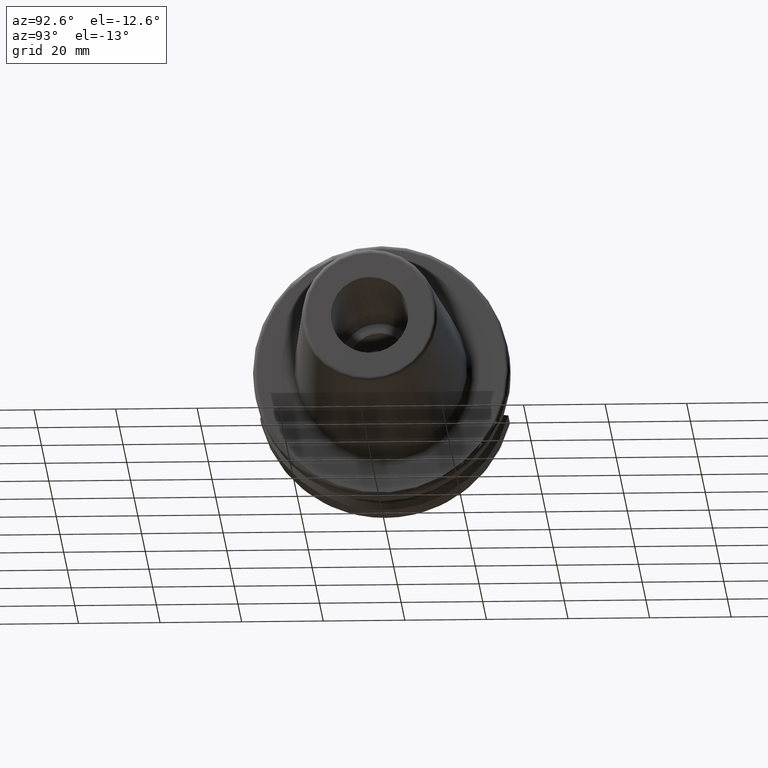
[diagram: clean part render]
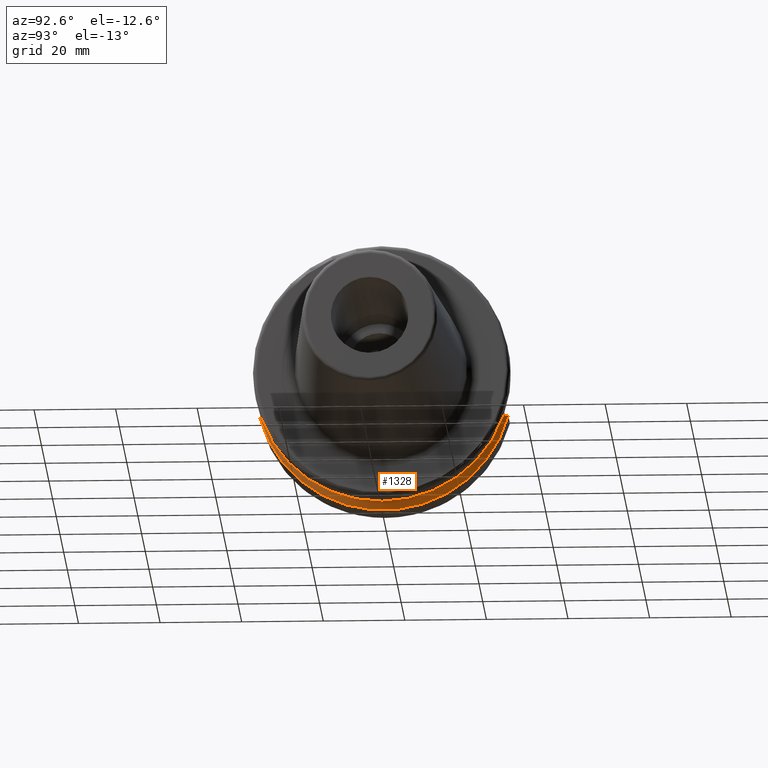
[diagram: same view with one face highlighted and labeled with its STEP entity id]
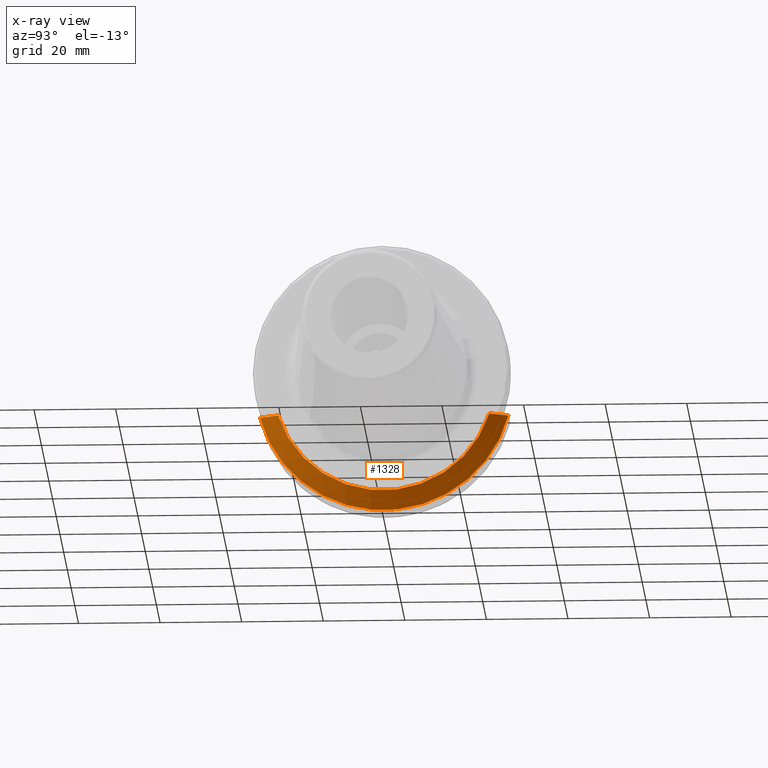
[diagram: x-ray of the same camera — body ghosted, the highlighted face saturated]
A machine part, auxiliary view. The second image highlights one B-rep face of the part: STEP entity #1328.
The next image is the same camera in x-ray: the body ghosted, the highlighted face saturated — about 0% of this face is hidden behind the body in this view.
In plain terms, the highlighted conical surface has half-angle 60.125 deg.
Its self-contained STEP definition (entity closure, byte-faithful):
#16=(
BOUNDED_CURVE()
B_SPLINE_CURVE(2,(#2443,#2444,#2445),.UNSPECIFIED.,.F.,.F.)
B_SPLINE_CURVE_WITH_KNOTS((3,3),(0.,0.523582790832811),.UNSPECIFIED.)
CURVE()
GEOMETRIC_REPRESENTATION_ITEM()
RATIONAL_B_SPLINE_CURVE((1.,1.0030736009757,1.))
REPRESENTATION_ITEM('')
);
#17=(
BOUNDED_CURVE()
B_SPLINE_CURVE(2,(#2502,#2503,#2504),.UNSPECIFIED.,.F.,.F.)
B_SPLINE_CURVE_WITH_KNOTS((3,3),(0.,0.523582790832811),.UNSPECIFIED.)
CURVE()
GEOMETRIC_REPRESENTATION_ITEM()
RATIONAL_B_SPLINE_CURVE((1.,1.0030736009757,1.))
REPRESENTATION_ITEM('')
);
#252=CONICAL_SURFACE('',#1496,29.2970358274569,1.0493792127616);
#300=FACE_OUTER_BOUND('',#380,.T.);
#380=EDGE_LOOP('',(#1118,#1119,#1120,#1121));
#473=CIRCLE('',#1495,27.0940716549138);
#474=CIRCLE('',#1497,31.5000000000001);
#608=VERTEX_POINT('',#2440);
#609=VERTEX_POINT('',#2442);
#619=VERTEX_POINT('',#2496);
#620=VERTEX_POINT('',#2500);
#783=EDGE_CURVE('',#609,#608,#16,.T.);
#800=EDGE_CURVE('',#609,#619,#473,.T.);
#802=EDGE_CURVE('',#608,#620,#474,.T.);
#803=EDGE_CURVE('',#620,#619,#17,.T.);
#1118=ORIENTED_EDGE('',*,*,#783,.T.);
#1119=ORIENTED_EDGE('',*,*,#802,.T.);
#1120=ORIENTED_EDGE('',*,*,#803,.T.);
#1121=ORIENTED_EDGE('',*,*,#800,.F.);
#1328=ADVANCED_FACE('',(#300),#252,.T.);
#1495=AXIS2_PLACEMENT_3D('',#2497,#1846,#1847);
#1496=AXIS2_PLACEMENT_3D('',#2499,#1849,#1850);
#1497=AXIS2_PLACEMENT_3D('',#2501,#1851,#1852);
#1846=DIRECTION('center_axis',(1.,0.,0.));
#1847=DIRECTION('ref_axis',(0.,0.,-1.));
#1849=DIRECTION('center_axis',(-1.,0.,0.));
#1850=DIRECTION('ref_axis',(0.,1.,0.));
#1851=DIRECTION('center_axis',(1.,0.,0.));
#1852=DIRECTION('ref_axis',(0.,0.,-1.));
#2440=CARTESIAN_POINT('',(11.5690363073382,-30.4540227227866,-8.05));
#2442=CARTESIAN_POINT('',(14.1,-25.8705666509569,-8.05));
#2443=CARTESIAN_POINT('Ctrl Pts',(14.1,-25.8705666509569,-8.05));
#2444=CARTESIAN_POINT('Ctrl Pts',(12.9374976962935,-27.9899702651817,-8.05));
#2445=CARTESIAN_POINT('Ctrl Pts',(11.5690363073382,-30.4540227227866,-8.05));
#2496=CARTESIAN_POINT('',(14.1,25.8705666509569,-8.05));
#2497=CARTESIAN_POINT('Origin',(14.1,0.,0.));
#2499=CARTESIAN_POINT('Origin',(12.8345181536691,0.,0.));
#2500=CARTESIAN_POINT('',(11.5690363073382,30.4540227227866,-8.05));
#2501=CARTESIAN_POINT('Origin',(11.5690363073382,0.,0.));
#2502=CARTESIAN_POINT('Ctrl Pts',(11.5690363073382,30.4540227227866,-8.05));
#2503=CARTESIAN_POINT('Ctrl Pts',(12.9374976962935,27.9899702651817,-8.05));
#2504=CARTESIAN_POINT('Ctrl Pts',(14.1,25.8705666509569,-8.05));